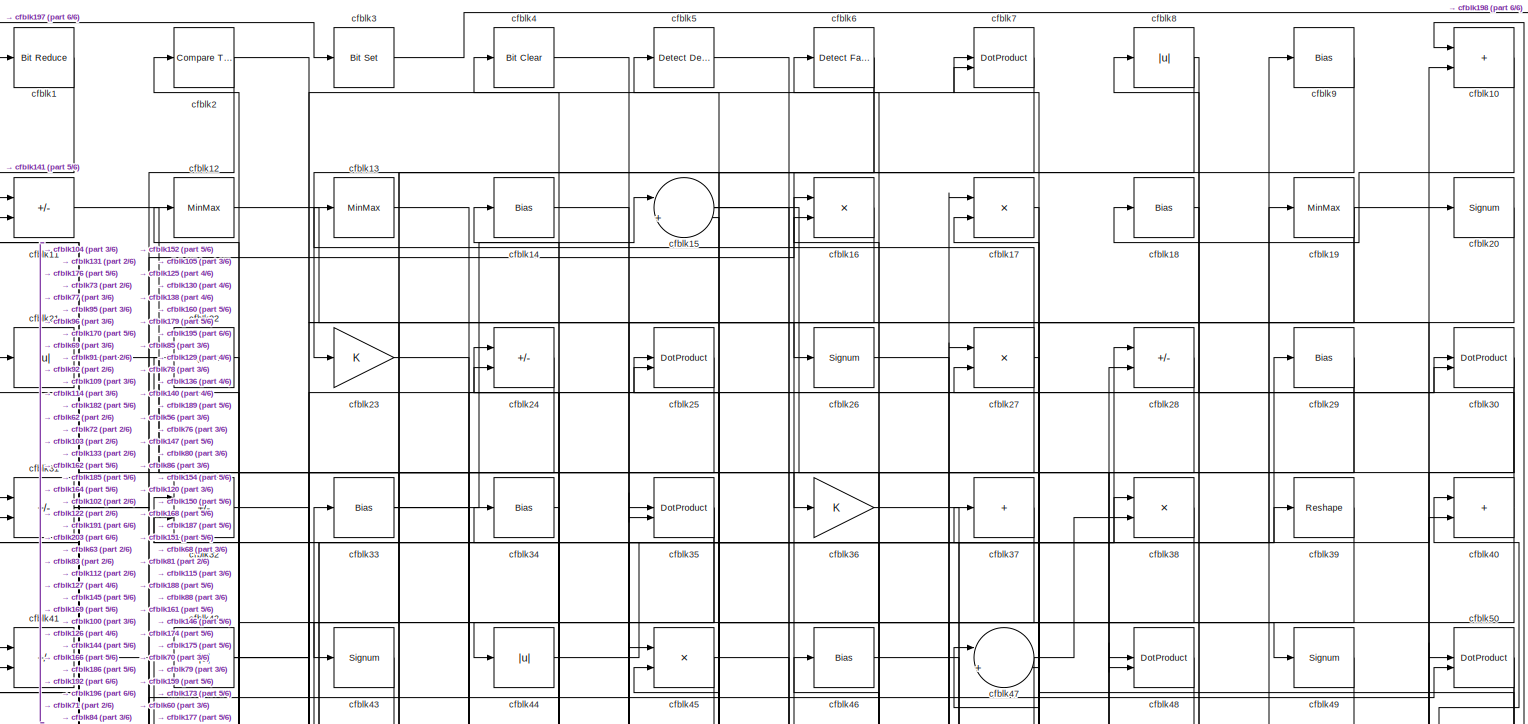
[diagram: root canvas - part 1/6, full width, top band]
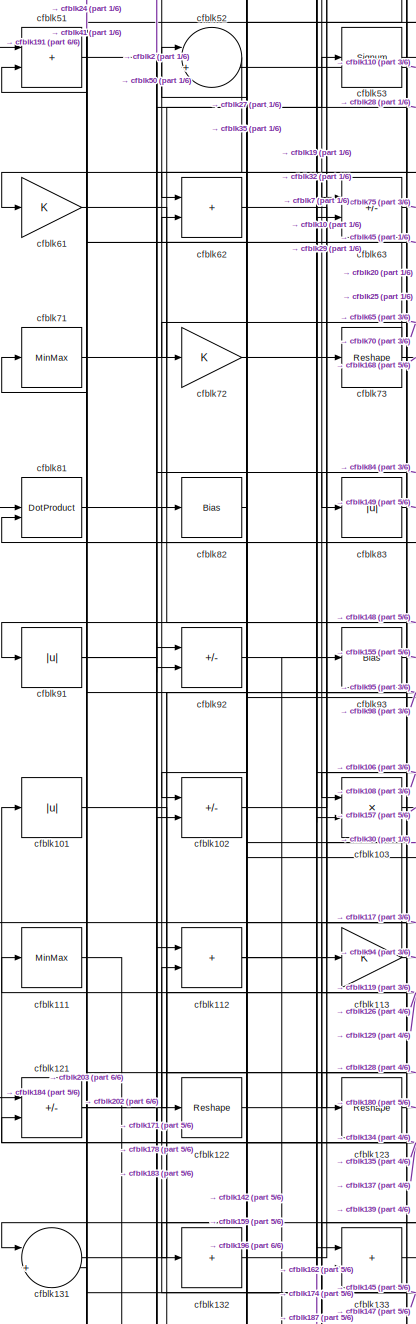
[diagram: root canvas - part 2/6, middle left region]
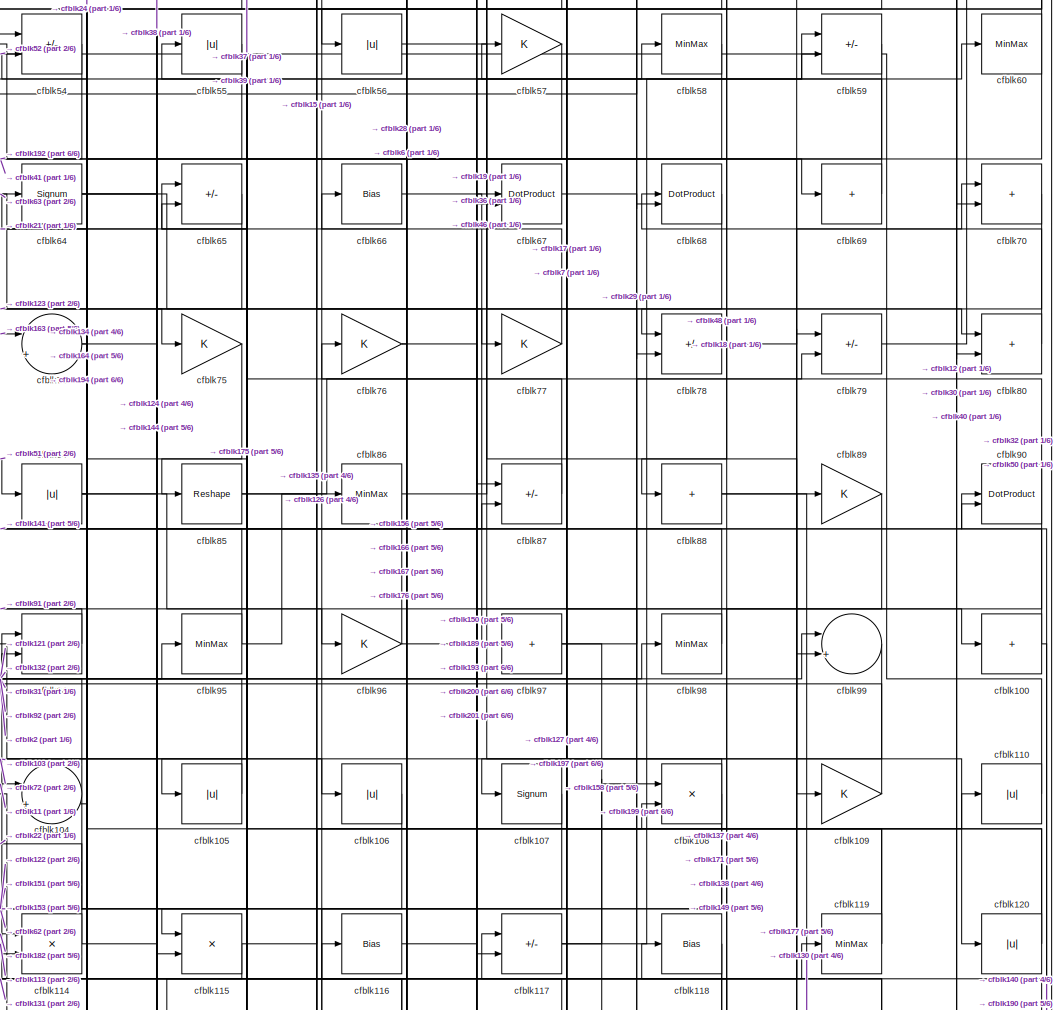
[diagram: root canvas - part 3/6, central region]
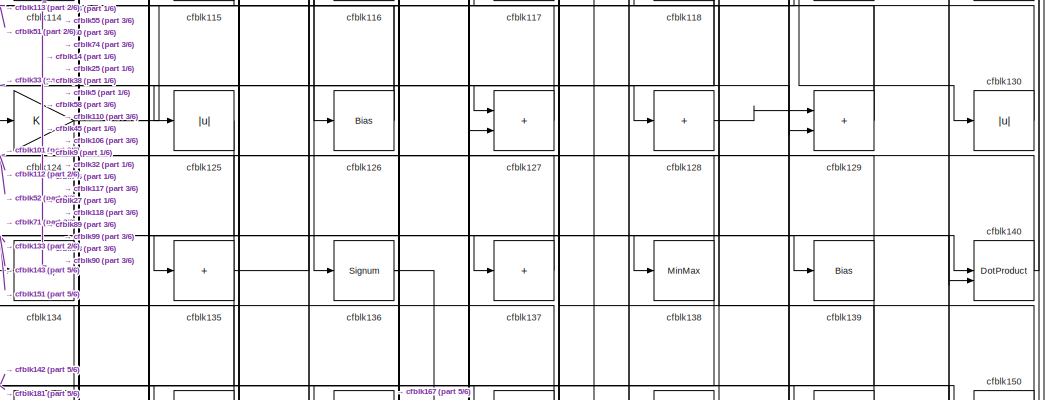
[diagram: root canvas - part 4/6, central region]
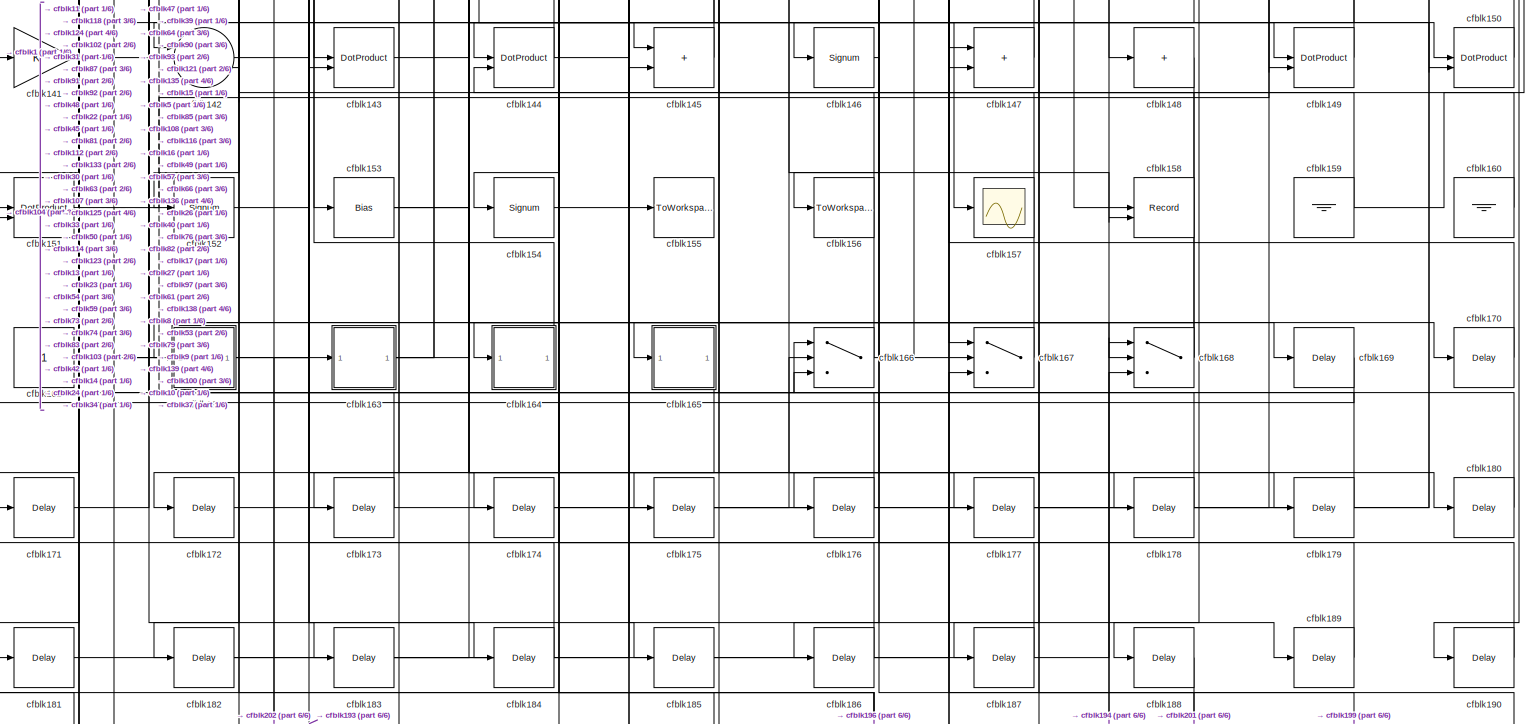
[diagram: root canvas - part 5/6, full width, bottom band]
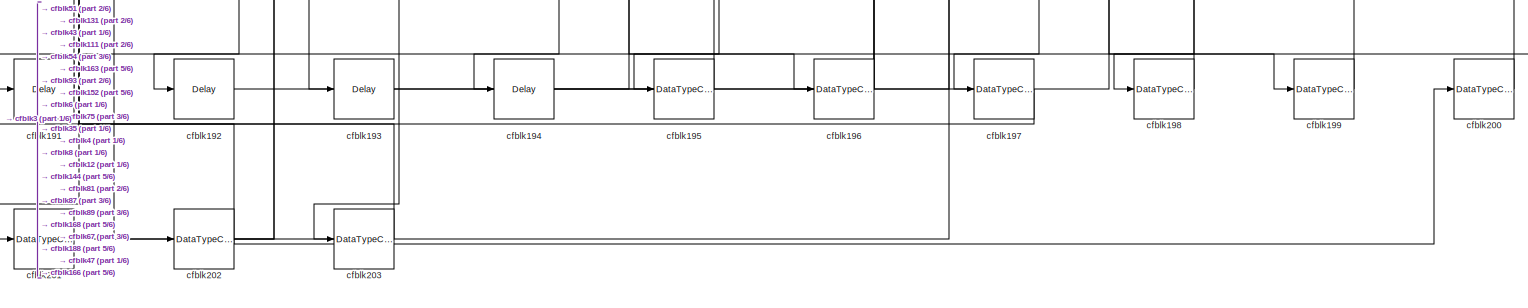
[diagram: root canvas - part 6/6, full width, bottom band]
MODEL slx_502bfdfb74ed
KIND model
CONFIG AbsTol = auto
CONFIG EnableMultiTasking = off
CONFIG FixedStep = auto
CONFIG MaxStep = auto
CONFIG MinStep = auto
CONFIG RelTol = 1e-3
CONFIG SampleTimeConstraint = Unconstrained
CONFIG SolverName = VariableStepAuto
CONFIG StartTime = 0.0
CONFIG StopTime = 10.0
BLOCK [Reference] cfblk1  REF=hdlsllib/Logic and Bit
Operations/Bit Reduce
  SourceBlock = hdlsllib/Logic and Bit\nOperations/Bit Reduce
  SourceType = Bit Reduce
BLOCK [Sum] cfblk10
  IconShape = rectangular
BLOCK [Sum] cfblk100
  IconShape = rectangular
  Inputs = +
BLOCK [Abs] cfblk101
  SaturateOnIntegerOverflow = off
BLOCK [Sum] cfblk102
  IconShape = rectangular
  Inputs = +-
BLOCK [Product] cfblk103
  Inputs = */
  RndMeth = Zero
  SaturateOnIntegerOverflow = on
BLOCK [Sum] cfblk104
  Inputs = |++
BLOCK [Abs] cfblk105
  SaturateOnIntegerOverflow = off
BLOCK [Abs] cfblk106
  SaturateOnIntegerOverflow = off
BLOCK [Signum] cfblk107
BLOCK [Product] cfblk108
  Inputs = */
  RndMeth = Zero
  SaturateOnIntegerOverflow = on
BLOCK [Gain] cfblk109
BLOCK [Sum] cfblk11
  IconShape = rectangular
  Inputs = +-
BLOCK [Abs] cfblk110
  SaturateOnIntegerOverflow = off
BLOCK [MinMax] cfblk111
BLOCK [Sum] cfblk112
  IconShape = rectangular
BLOCK [Gain] cfblk113
BLOCK [Product] cfblk114
  Inputs = */
  RndMeth = Zero
  SaturateOnIntegerOverflow = on
BLOCK [Product] cfblk115
  Inputs = */
  RndMeth = Zero
  SaturateOnIntegerOverflow = on
BLOCK [Bias] cfblk116
  Bias = 0.0
  SaturateOnIntegerOverflow = off
BLOCK [Sum] cfblk117
  IconShape = rectangular
  Inputs = +-
BLOCK [Bias] cfblk118
  Bias = 0.0
  SaturateOnIntegerOverflow = off
BLOCK [MinMax] cfblk119
BLOCK [MinMax] cfblk12
BLOCK [Abs] cfblk120
  SaturateOnIntegerOverflow = off
BLOCK [Sum] cfblk121
  IconShape = rectangular
  Inputs = +-
BLOCK [Reshape] cfblk122
BLOCK [Reshape] cfblk123
BLOCK [Gain] cfblk124
BLOCK [Abs] cfblk125
  SaturateOnIntegerOverflow = off
BLOCK [Bias] cfblk126
  Bias = 0.0
  SaturateOnIntegerOverflow = off
BLOCK [Sum] cfblk127
  IconShape = rectangular
BLOCK [Sum] cfblk128
  IconShape = rectangular
  Inputs = +
BLOCK [Sum] cfblk129
  IconShape = rectangular
BLOCK [MinMax] cfblk13
BLOCK [Abs] cfblk130
  SaturateOnIntegerOverflow = off
BLOCK [Sum] cfblk131
  Inputs = |++
BLOCK [Sum] cfblk132
  IconShape = rectangular
  Inputs = +
BLOCK [Sum] cfblk133
  IconShape = rectangular
BLOCK [Reshape] cfblk134
BLOCK [Sum] cfblk135
  IconShape = rectangular
  Inputs = +
BLOCK [Signum] cfblk136
BLOCK [Sum] cfblk137
  IconShape = rectangular
  Inputs = +
BLOCK [MinMax] cfblk138
BLOCK [Bias] cfblk139
  Bias = 0.0
  SaturateOnIntegerOverflow = off
BLOCK [Bias] cfblk14
  Bias = 0.0
  SaturateOnIntegerOverflow = off
BLOCK [DotProduct] cfblk140
  OutDataTypeStr = Inherit: Inherit via internal rule
BLOCK [Gain] cfblk141
BLOCK [Sum] cfblk142
  Inputs = |++
BLOCK [DotProduct] cfblk143
  OutDataTypeStr = Inherit: Inherit via internal rule
BLOCK [DotProduct] cfblk144
  OutDataTypeStr = Inherit: Inherit via internal rule
BLOCK [Sum] cfblk145
  IconShape = rectangular
BLOCK [Signum] cfblk146
BLOCK [Sum] cfblk147
  IconShape = rectangular
BLOCK [Sum] cfblk148
  IconShape = rectangular
  Inputs = +
BLOCK [DotProduct] cfblk149
  OutDataTypeStr = Inherit: Inherit via internal rule
BLOCK [Sum] cfblk15
  Inputs = |++
BLOCK [DotProduct] cfblk150
  OutDataTypeStr = Inherit: Inherit via internal rule
BLOCK [DotProduct] cfblk151
  OutDataTypeStr = Inherit: Inherit via internal rule
BLOCK [Signum] cfblk152
BLOCK [Bias] cfblk153
  Bias = 0.0
  SaturateOnIntegerOverflow = off
BLOCK [Signum] cfblk154
BLOCK [ToWorkspace] cfblk155
  MaxDataPoints = inf
  SampleTime = -1
  SaveFormat = Timeseries
  VariableName = simout
BLOCK [ToWorkspace] cfblk156
  MaxDataPoints = inf
  SampleTime = -1
  SaveFormat = Timeseries
  VariableName = simout
BLOCK [Scope] cfblk157
  Floating = off
  NumInputPorts = 1
  ScopeSpecificationString = Simulink.scopes.TimeScopeBlockCfg('CurrentConfiguration', extmgr.ConfigurationSet(extmgr.Configuration('Core','General UI',true),extmgr.Configuration('Core','Source UI',true),extmgr.Configuration('Sources','WiredSimulink',true,'DataLoggingVariableName','ScopeData2','DataLoggingSaveFormat','Array','DataLoggingLimitDataPoints',true,'DataLoggingDecimation','1'),extmgr.Configuration('Visuals','Time Do...<+868ch>
BLOCK [Record] cfblk158
  CompatibilityTag = XY
  FileSettingsInternal = {"entries":[{"content":{"excelSettings":{"content":{},"type":"Streamout.ExcelSettings"}},"type":"Streamout.FileSettingStorage","uuid":""}],"packageUris":["http:\/\/schema.mathworks.com\/mf0\/streamout_blocks\/R2020a"],"version":"1.0"}
  Layout = [1 1]
  SignalsInternal = {"entries":[{"content":{},"type":"RecordBlkView.InputSignals","uuid":""}],"packageUris":["http:\/\/schema.mathworks.com\/mf0\/streamout_blocks\/R2020a"],"version":"1.0"}
  VisualizationBindings = {"xyplotplugin":{"info":[{"series":[{"bindingParametersList":[{"parameter":"X-Axis","signalID":3706,"signalName":"cfblk97"},{"parameter":"Y-Axis","signalID":3710,"signalName":"cfblk85"}],"seriesID":10306}],"subplotID":1}]}}
  st = -1
BLOCK [Ground] cfblk159
BLOCK [Product] cfblk16
  Inputs = */
  RndMeth = Zero
  SaturateOnIntegerOverflow = on
BLOCK [Ground] cfblk160
BLOCK [Constant] cfblk161
  SampleTime = -1
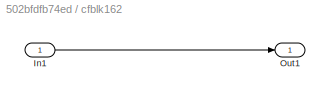
BLOCK [SubSystem] cfblk162
  LibrarySourceBlock = hdlsllib/Ports &\nSubsystems/Subsystem
BLOCK [Inport] cfblk162/In1
BLOCK [Outport] cfblk162/Out1
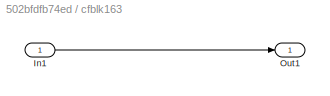
BLOCK [SubSystem] cfblk163
  LibrarySourceBlock = hdlsllib/Ports &\nSubsystems/Subsystem
BLOCK [Inport] cfblk163/In1
BLOCK [Outport] cfblk163/Out1
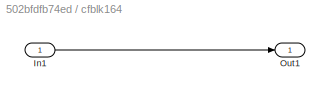
BLOCK [SubSystem] cfblk164
  LibrarySourceBlock = hdlsllib/Ports &\nSubsystems/Subsystem
BLOCK [Inport] cfblk164/In1
BLOCK [Outport] cfblk164/Out1
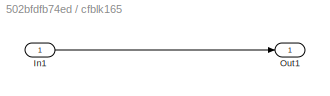
BLOCK [SubSystem] cfblk165
  LibrarySourceBlock = hdlsllib/Ports &\nSubsystems/Subsystem
BLOCK [Inport] cfblk165/In1
BLOCK [Outport] cfblk165/Out1
BLOCK [Switch] cfblk166
  InputSameDT = off
  SaturateOnIntegerOverflow = off
BLOCK [Switch] cfblk167
  InputSameDT = off
  SaturateOnIntegerOverflow = off
BLOCK [Switch] cfblk168
  InputSameDT = off
  SaturateOnIntegerOverflow = off
BLOCK [Delay] cfblk169
  InputPortMap = u0
  SampleTime = 1
BLOCK [Product] cfblk17
  Inputs = */
  RndMeth = Zero
  SaturateOnIntegerOverflow = on
BLOCK [Delay] cfblk170
  InputPortMap = u0
  SampleTime = 1
BLOCK [Delay] cfblk171
  InputPortMap = u0
  SampleTime = 1
BLOCK [Delay] cfblk172
  InputPortMap = u0
  SampleTime = 1
BLOCK [Delay] cfblk173
  InputPortMap = u0
  SampleTime = 1
BLOCK [Delay] cfblk174
  InputPortMap = u0
  SampleTime = 1
BLOCK [Delay] cfblk175
  InputPortMap = u0
  SampleTime = 1
BLOCK [Delay] cfblk176
  InputPortMap = u0
  SampleTime = 1
BLOCK [Delay] cfblk177
  InputPortMap = u0
  SampleTime = 1
BLOCK [Delay] cfblk178
  InputPortMap = u0
  SampleTime = 1
BLOCK [Delay] cfblk179
  InputPortMap = u0
  SampleTime = 1
BLOCK [Bias] cfblk18
  Bias = 0.0
  SaturateOnIntegerOverflow = off
BLOCK [Delay] cfblk180
  InputPortMap = u0
  SampleTime = 1
BLOCK [Delay] cfblk181
  InputPortMap = u0
  SampleTime = 1
BLOCK [Delay] cfblk182
  InputPortMap = u0
  SampleTime = 1
BLOCK [Delay] cfblk183
  InputPortMap = u0
  SampleTime = 1
BLOCK [Delay] cfblk184
  InputPortMap = u0
  SampleTime = 1
BLOCK [Delay] cfblk185
  InputPortMap = u0
  SampleTime = 1
BLOCK [Delay] cfblk186
  InputPortMap = u0
  SampleTime = 1
BLOCK [Delay] cfblk187
  InputPortMap = u0
  SampleTime = 1
BLOCK [Delay] cfblk188
  InputPortMap = u0
  SampleTime = 1
BLOCK [Delay] cfblk189
  InputPortMap = u0
  SampleTime = 1
BLOCK [MinMax] cfblk19
BLOCK [Delay] cfblk190
  InputPortMap = u0
  SampleTime = 1
BLOCK [Delay] cfblk191
  InputPortMap = u0
  SampleTime = 1
BLOCK [Delay] cfblk192
  InputPortMap = u0
  SampleTime = 1
BLOCK [Delay] cfblk193
  InputPortMap = u0
  SampleTime = 1
BLOCK [Delay] cfblk194
  InputPortMap = u0
  SampleTime = 1
BLOCK [DataTypeConversion] cfblk195
  OutDataTypeStr = boolean
  RndMeth = Floor
  SaturateOnIntegerOverflow = off
BLOCK [DataTypeConversion] cfblk196
  RndMeth = Floor
  SaturateOnIntegerOverflow = off
BLOCK [DataTypeConversion] cfblk197
  OutDataTypeStr = boolean
  RndMeth = Floor
  SaturateOnIntegerOverflow = off
BLOCK [DataTypeConversion] cfblk198
  OutDataTypeStr = uint8
  RndMeth = Floor
  SaturateOnIntegerOverflow = off
BLOCK [DataTypeConversion] cfblk199
  OutDataTypeStr = uint8
  RndMeth = Floor
  SaturateOnIntegerOverflow = off
BLOCK [Reference] cfblk2  REF=hdlsllib/Logic and Bit
Operations/Compare
To Zero
  SourceBlock = hdlsllib/Logic and Bit\nOperations/Compare\nTo Zero
  SourceType = Compare To Zero
BLOCK [Signum] cfblk20
BLOCK [DataTypeConversion] cfblk200
  OutDataTypeStr = uint8
  RndMeth = Floor
  SaturateOnIntegerOverflow = off
BLOCK [DataTypeConversion] cfblk201
  OutDataTypeStr = uint8
  RndMeth = Floor
  SaturateOnIntegerOverflow = off
BLOCK [DataTypeConversion] cfblk202
  RndMeth = Floor
  SaturateOnIntegerOverflow = off
BLOCK [DataTypeConversion] cfblk203
  OutDataTypeStr = uint8
  RndMeth = Floor
  SaturateOnIntegerOverflow = off
BLOCK [Abs] cfblk21
  SaturateOnIntegerOverflow = off
BLOCK [Signum] cfblk22
BLOCK [Gain] cfblk23
BLOCK [Sum] cfblk24
  IconShape = rectangular
  Inputs = +-
BLOCK [DotProduct] cfblk25
  OutDataTypeStr = Inherit: Inherit via internal rule
BLOCK [Signum] cfblk26
BLOCK [Product] cfblk27
  Inputs = */
  RndMeth = Zero
  SaturateOnIntegerOverflow = on
BLOCK [Sum] cfblk28
  IconShape = rectangular
  Inputs = +-
BLOCK [Bias] cfblk29
  Bias = 0.0
  SaturateOnIntegerOverflow = off
BLOCK [Reference] cfblk3  REF=simulink/Logic and Bit
Operations/Bit Set
  LibrarySourceBlock = hdlsllib/Logic and Bit\nOperations/Bit Set
  SourceBlock = simulink/Logic and Bit\nOperations/Bit Set
  SourceType = Bit Set
BLOCK [DotProduct] cfblk30
  OutDataTypeStr = Inherit: Inherit via internal rule
BLOCK [Sum] cfblk31
  IconShape = rectangular
  Inputs = +-
BLOCK [Sum] cfblk32
  IconShape = rectangular
  Inputs = +-
BLOCK [Bias] cfblk33
  Bias = 0.0
  SaturateOnIntegerOverflow = off
BLOCK [Bias] cfblk34
  Bias = 0.0
  SaturateOnIntegerOverflow = off
BLOCK [DotProduct] cfblk35
  OutDataTypeStr = Inherit: Inherit via internal rule
BLOCK [Gain] cfblk36
BLOCK [Sum] cfblk37
  IconShape = rectangular
  Inputs = +
BLOCK [Product] cfblk38
  Inputs = */
  RndMeth = Zero
  SaturateOnIntegerOverflow = on
BLOCK [Reshape] cfblk39
BLOCK [Reference] cfblk4  REF=simulink/Logic and Bit
Operations/Bit Clear
  LibrarySourceBlock = hdlsllib/Logic and Bit\nOperations/Bit Clear
  SourceBlock = simulink/Logic and Bit\nOperations/Bit Clear
  SourceType = Bit Clear
BLOCK [Sum] cfblk40
  IconShape = rectangular
BLOCK [Sum] cfblk41
  IconShape = rectangular
  Inputs = +-
BLOCK [Abs] cfblk42
  SaturateOnIntegerOverflow = off
BLOCK [Signum] cfblk43
BLOCK [Abs] cfblk44
  SaturateOnIntegerOverflow = off
BLOCK [Product] cfblk45
  Inputs = */
  RndMeth = Zero
  SaturateOnIntegerOverflow = on
BLOCK [Bias] cfblk46
  Bias = 0.0
  SaturateOnIntegerOverflow = off
BLOCK [Sum] cfblk47
  Inputs = |++
BLOCK [DotProduct] cfblk48
  OutDataTypeStr = Inherit: Inherit via internal rule
BLOCK [Signum] cfblk49
BLOCK [Reference] cfblk5  REF=simulink/Logic and Bit
Operations/Detect
Decrease
  LibrarySourceBlock = hdlsllib/Logic and Bit\nOperations/Detect\nDecrease
  SourceBlock = simulink/Logic and Bit\nOperations/Detect\nDecrease
  SourceType = Detect Decrease
BLOCK [DotProduct] cfblk50
  OutDataTypeStr = Inherit: Inherit via internal rule
BLOCK [Sum] cfblk51
  IconShape = rectangular
BLOCK [Sum] cfblk52
  Inputs = |++
BLOCK [Signum] cfblk53
BLOCK [Sum] cfblk54
  IconShape = rectangular
  Inputs = +-
BLOCK [Abs] cfblk55
  SaturateOnIntegerOverflow = off
BLOCK [Abs] cfblk56
  SaturateOnIntegerOverflow = off
BLOCK [Gain] cfblk57
BLOCK [MinMax] cfblk58
BLOCK [Sum] cfblk59
  IconShape = rectangular
  Inputs = +-
BLOCK [Reference] cfblk6  REF=hdlsllib/Logic and Bit
Operations/Detect Fall
Negative
  SourceBlock = hdlsllib/Logic and Bit\nOperations/Detect Fall\nNegative
  SourceType = Detect Fall Negative
BLOCK [MinMax] cfblk60
BLOCK [Gain] cfblk61
BLOCK [Sum] cfblk62
  IconShape = rectangular
BLOCK [Sum] cfblk63
  IconShape = rectangular
  Inputs = +-
BLOCK [Signum] cfblk64
BLOCK [Sum] cfblk65
  IconShape = rectangular
  Inputs = +-
BLOCK [Bias] cfblk66
  Bias = 0.0
  SaturateOnIntegerOverflow = off
BLOCK [DotProduct] cfblk67
  OutDataTypeStr = Inherit: Inherit via internal rule
BLOCK [DotProduct] cfblk68
  OutDataTypeStr = Inherit: Inherit via internal rule
BLOCK [Sum] cfblk69
  IconShape = rectangular
  Inputs = +
BLOCK [DotProduct] cfblk7
  OutDataTypeStr = Inherit: Inherit via internal rule
BLOCK [Sum] cfblk70
  IconShape = rectangular
BLOCK [MinMax] cfblk71
BLOCK [Gain] cfblk72
BLOCK [Reshape] cfblk73
BLOCK [Sum] cfblk74
  Inputs = |++
BLOCK [Gain] cfblk75
BLOCK [Gain] cfblk76
BLOCK [Gain] cfblk77
BLOCK [Sum] cfblk78
  IconShape = rectangular
  Inputs = +-
BLOCK [Sum] cfblk79
  IconShape = rectangular
  Inputs = +-
BLOCK [Abs] cfblk8
  SaturateOnIntegerOverflow = off
BLOCK [Sum] cfblk80
  IconShape = rectangular
BLOCK [DotProduct] cfblk81
  OutDataTypeStr = Inherit: Inherit via internal rule
BLOCK [Bias] cfblk82
  Bias = 0.0
  SaturateOnIntegerOverflow = off
BLOCK [Abs] cfblk83
  SaturateOnIntegerOverflow = off
BLOCK [Abs] cfblk84
  SaturateOnIntegerOverflow = off
BLOCK [Reshape] cfblk85
BLOCK [MinMax] cfblk86
BLOCK [Sum] cfblk87
  IconShape = rectangular
  Inputs = +-
BLOCK [Sum] cfblk88
  IconShape = rectangular
  Inputs = +
BLOCK [Gain] cfblk89
BLOCK [Bias] cfblk9
  Bias = 0.0
  SaturateOnIntegerOverflow = off
BLOCK [DotProduct] cfblk90
  OutDataTypeStr = Inherit: Inherit via internal rule
BLOCK [Abs] cfblk91
  SaturateOnIntegerOverflow = off
BLOCK [Sum] cfblk92
  IconShape = rectangular
  Inputs = +-
BLOCK [Bias] cfblk93
  Bias = 0.0
  SaturateOnIntegerOverflow = off
BLOCK [Product] cfblk94
  Inputs = */
  RndMeth = Zero
  SaturateOnIntegerOverflow = on
BLOCK [MinMax] cfblk95
BLOCK [Gain] cfblk96
BLOCK [Sum] cfblk97
  IconShape = rectangular
  Inputs = +
BLOCK [MinMax] cfblk98
BLOCK [Sum] cfblk99
  Inputs = |++
NET cfblk100:1 -> cfblk190:1, cfblk24:1
LINE cfblk101:1 -> cfblk128:1
LINE cfblk102:1 -> cfblk29:1
LINE cfblk103:1 -> cfblk157:1
NET cfblk104:1 -> cfblk151:2, cfblk31:1
LINE cfblk105:1 -> cfblk64:1
LINE cfblk106:1 -> cfblk126:1
LINE cfblk107:1 -> cfblk153:1
NET cfblk108:1 -> cfblk103:1, cfblk122:1, cfblk176:1
LINE cfblk109:1 -> cfblk2:1
LINE cfblk10:1 -> cfblk18:1
LINE cfblk110:1 -> cfblk52:2
LINE cfblk111:1 -> cfblk202:1
NET cfblk112:1 -> cfblk174:1, cfblk30:2
NET cfblk113:1 -> cfblk62:2, cfblk94:1
NET cfblk114:1 -> cfblk22:1, cfblk58:1
NET cfblk115:1 -> cfblk108:2, cfblk114:2
LINE cfblk116:1 -> cfblk60:1
NET cfblk117:1 -> cfblk108:1, cfblk59:1
NET cfblk118:1 -> cfblk137:1, cfblk171:1
NET cfblk119:1 -> cfblk55:1, cfblk57:1
LINE cfblk11:1 -> cfblk104:1
NET cfblk120:1 -> cfblk17:2, cfblk74:2
NET cfblk121:1 -> cfblk53:1, cfblk95:1
LINE cfblk122:1 -> cfblk10:2
LINE cfblk123:1 -> cfblk180:1
NET cfblk124:1 -> cfblk151:1, cfblk89:1, cfblk99:1
LINE cfblk125:1 -> cfblk143:1
NET cfblk126:1 -> cfblk113:1, cfblk34:1
LINE cfblk127:1 -> cfblk117:1
LINE cfblk128:1 -> cfblk129:1
NET cfblk129:1 -> cfblk25:1, cfblk51:2
LINE cfblk12:1 -> cfblk70:2
LINE cfblk130:1 -> cfblk5:1
LINE cfblk131:1 -> cfblk119:1
LINE cfblk132:1 -> cfblk98:1
LINE cfblk133:1 -> cfblk139:1
LINE cfblk134:1 -> cfblk101:1
NET cfblk135:1 -> cfblk110:1, cfblk112:2, cfblk181:1
NET cfblk136:1 -> cfblk167:2, cfblk46:1
LINE cfblk137:1 -> cfblk52:1
NET cfblk138:1 -> cfblk143:2, cfblk25:2
NET cfblk139:1 -> cfblk142:2, cfblk71:1
LINE cfblk13:1 -> cfblk145:1
NET cfblk140:1 -> cfblk32:1, cfblk90:2
LINE cfblk141:1 -> cfblk87:2
LINE cfblk142:1 -> cfblk184:1
LINE cfblk143:1 -> cfblk150:1
NET cfblk144:1 -> cfblk42:1, cfblk90:1
LINE cfblk145:1 -> cfblk121:2
LINE cfblk146:1 -> cfblk186:1
LINE cfblk147:1 -> cfblk82:1
LINE cfblk148:1 -> cfblk165:1
LINE cfblk149:1 -> cfblk118:1
LINE cfblk14:1 -> cfblk140:1
LINE cfblk150:1 -> cfblk37:1
LINE cfblk151:1 -> cfblk48:1
LINE cfblk152:1 -> cfblk193:1
NET cfblk153:1 -> cfblk178:1, cfblk179:1
LINE cfblk154:1 -> cfblk39:1
NET cfblk159:1 -> cfblk10:1, cfblk81:2
NET cfblk15:1 -> cfblk48:2, cfblk78:2
LINE cfblk160:1 -> cfblk15:2
NET cfblk161:1 -> cfblk166:1, cfblk9:1
LINE cfblk162/In1:1 -> cfblk162/Out1:1
NET cfblk162:1 -> cfblk30:1, cfblk63:2
LINE cfblk163/In1:1 -> cfblk163/Out1:1
NET cfblk163:1 -> cfblk54:1, cfblk59:2, cfblk74:1
LINE cfblk164/In1:1 -> cfblk164/Out1:1
LINE cfblk164:1 -> cfblk33:1
LINE cfblk165/In1:1 -> cfblk165/Out1:1
LINE cfblk165:1 -> cfblk172:1
NET cfblk166:1 -> cfblk116:1, cfblk14:1
LINE cfblk167:1 -> cfblk66:1
NET cfblk168:1 -> cfblk162:1, cfblk27:2
LINE cfblk169:1 -> cfblk1:1
LINE cfblk16:1 -> cfblk35:2
LINE cfblk170:1 -> cfblk27:1
LINE cfblk171:1 -> cfblk102:2
LINE cfblk172:1 -> cfblk166:2
LINE cfblk173:1 -> cfblk11:2
LINE cfblk174:1 -> cfblk50:1
LINE cfblk175:1 -> cfblk40:2
LINE cfblk176:1 -> cfblk31:2
LINE cfblk177:1 -> cfblk79:1
LINE cfblk178:1 -> cfblk92:1
LINE cfblk179:1 -> cfblk45:2
LINE cfblk17:1 -> cfblk187:1
LINE cfblk180:1 -> cfblk112:1
LINE cfblk181:1 -> cfblk167:3
LINE cfblk182:1 -> cfblk114:1
LINE cfblk183:1 -> cfblk145:2
LINE cfblk184:1 -> cfblk121:1
LINE cfblk185:1 -> cfblk168:3
LINE cfblk186:1 -> cfblk24:2
LINE cfblk187:1 -> cfblk133:1
LINE cfblk188:1 -> cfblk201:1
LINE cfblk189:1 -> cfblk16:2
LINE cfblk18:1 -> cfblk88:1
LINE cfblk190:1 -> cfblk104:2
LINE cfblk191:1 -> cfblk51:1
LINE cfblk192:1 -> cfblk35:1
LINE cfblk193:1 -> cfblk87:1
LINE cfblk194:1 -> cfblk168:1
LINE cfblk195:1 -> cfblk4:1
NET cfblk196:1 -> cfblk12:1, cfblk144:2, cfblk81:1
LINE cfblk197:1 -> cfblk3:1
LINE cfblk198:1 -> cfblk47:1
LINE cfblk199:1 -> cfblk166:3
NET cfblk19:1 -> cfblk103:2, cfblk20:1, cfblk47:2
LINE cfblk1:1 -> cfblk141:1
LINE cfblk200:1 -> cfblk67:1
LINE cfblk201:1 -> cfblk67:2
NET cfblk202:1 -> cfblk131:2, cfblk163:1, cfblk200:1, cfblk93:1
LINE cfblk203:1 -> cfblk111:1
LINE cfblk20:1 -> cfblk63:1
LINE cfblk21:1 -> cfblk36:1
LINE cfblk22:1 -> cfblk182:1
LINE cfblk23:1 -> cfblk169:1
LINE cfblk24:1 -> cfblk131:1
LINE cfblk25:1 -> cfblk83:1
LINE cfblk26:1 -> cfblk147:1
NET cfblk27:1 -> cfblk127:1, cfblk13:1, cfblk72:1
LINE cfblk28:1 -> cfblk56:1
NET cfblk29:1 -> cfblk133:2, cfblk68:2
NET cfblk2:1 -> cfblk26:1, cfblk92:2
NET cfblk30:1 -> cfblk62:1, cfblk80:2
NET cfblk31:1 -> cfblk16:1, cfblk170:1
LINE cfblk32:1 -> cfblk73:1
NET cfblk33:1 -> cfblk127:2, cfblk15:1
LINE cfblk34:1 -> cfblk144:1
NET cfblk35:1 -> cfblk102:1, cfblk44:1
LINE cfblk36:1 -> cfblk80:1
LINE cfblk37:1 -> cfblk85:1
LINE cfblk38:1 -> cfblk125:1
LINE cfblk39:1 -> cfblk105:1
LINE cfblk3:1 -> cfblk198:1
NET cfblk40:1 -> cfblk147:2, cfblk8:1
LINE cfblk41:1 -> cfblk69:1
NET cfblk42:1 -> cfblk185:1, cfblk49:1
LINE cfblk43:1 -> cfblk191:1
LINE cfblk44:1 -> cfblk28:1
NET cfblk45:1 -> cfblk129:2, cfblk152:1
LINE cfblk46:1 -> cfblk120:1
NET cfblk47:1 -> cfblk154:1, cfblk38:2
LINE cfblk48:1 -> cfblk115:1
LINE cfblk49:1 -> cfblk146:1
LINE cfblk4:1 -> cfblk196:1
NET cfblk50:1 -> cfblk115:2, cfblk173:1
LINE cfblk51:1 -> cfblk84:1
LINE cfblk52:1 -> cfblk61:1
LINE cfblk53:1 -> cfblk149:2
LINE cfblk54:1 -> cfblk192:1
LINE cfblk55:1 -> cfblk124:1
LINE cfblk56:1 -> cfblk109:1
LINE cfblk57:1 -> cfblk156:1
LINE cfblk58:1 -> cfblk135:1
LINE cfblk59:1 -> cfblk175:1
LINE cfblk5:1 -> cfblk177:1
NET cfblk60:1 -> cfblk134:1, cfblk32:2
LINE cfblk61:1 -> cfblk148:1
LINE cfblk62:1 -> cfblk117:2
LINE cfblk63:1 -> cfblk75:1
NET cfblk64:1 -> cfblk167:1, cfblk189:1, cfblk77:1
LINE cfblk65:1 -> cfblk123:1
LINE cfblk66:1 -> cfblk97:1
LINE cfblk67:1 -> cfblk199:1
LINE cfblk68:1 -> cfblk78:1
LINE cfblk69:1 -> cfblk7:1
NET cfblk6:1 -> cfblk203:1, cfblk23:1
LINE cfblk70:1 -> cfblk132:1
LINE cfblk71:1 -> cfblk45:1
NET cfblk72:1 -> cfblk106:1, cfblk7:2
NET cfblk73:1 -> cfblk168:2, cfblk41:1
NET cfblk74:1 -> cfblk140:2, cfblk164:1
LINE cfblk75:1 -> cfblk194:1
NET cfblk76:1 -> cfblk150:2, cfblk6:1
LINE cfblk77:1 -> cfblk21:1
LINE cfblk78:1 -> cfblk70:1
LINE cfblk79:1 -> cfblk40:1
LINE cfblk7:1 -> cfblk43:1
LINE cfblk80:1 -> cfblk68:1
LINE cfblk81:1 -> cfblk28:2
LINE cfblk82:1 -> cfblk142:1
LINE cfblk83:1 -> cfblk149:1
NET cfblk84:1 -> cfblk38:1, cfblk54:2, cfblk96:1
NET cfblk85:1 -> cfblk158:2, cfblk17:1
LINE cfblk86:1 -> cfblk19:1
LINE cfblk87:1 -> cfblk76:1
NET cfblk88:1 -> cfblk130:1, cfblk99:2
LINE cfblk89:1 -> cfblk197:1
NET cfblk8:1 -> cfblk188:1, cfblk195:1
NET cfblk90:1 -> cfblk138:1, cfblk65:2
NET cfblk91:1 -> cfblk183:1, cfblk50:2
LINE cfblk92:1 -> cfblk94:2
LINE cfblk93:1 -> cfblk155:1
LINE cfblk94:1 -> cfblk91:1
NET cfblk95:1 -> cfblk11:1, cfblk86:1
NET cfblk96:1 -> cfblk100:1, cfblk41:2
NET cfblk97:1 -> cfblk158:1, cfblk79:2
LINE cfblk98:1 -> cfblk65:1
LINE cfblk99:1 -> cfblk107:1
LINE cfblk9:1 -> cfblk136:1
note: NET lines group one-source signal fan-out (src -> all destinations, sorted); 1:1 wires keep LINE
